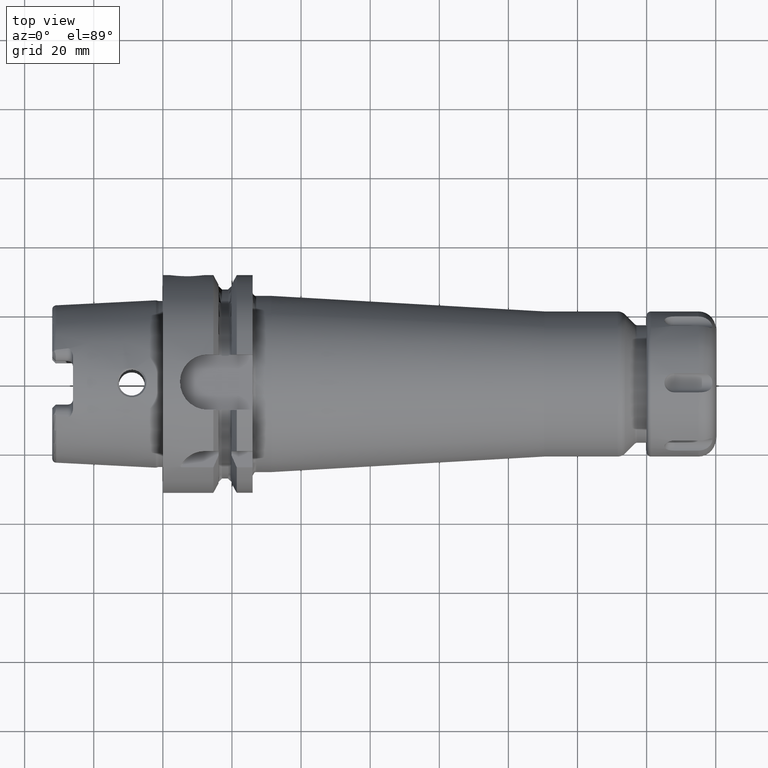
[diagram: clean part render]
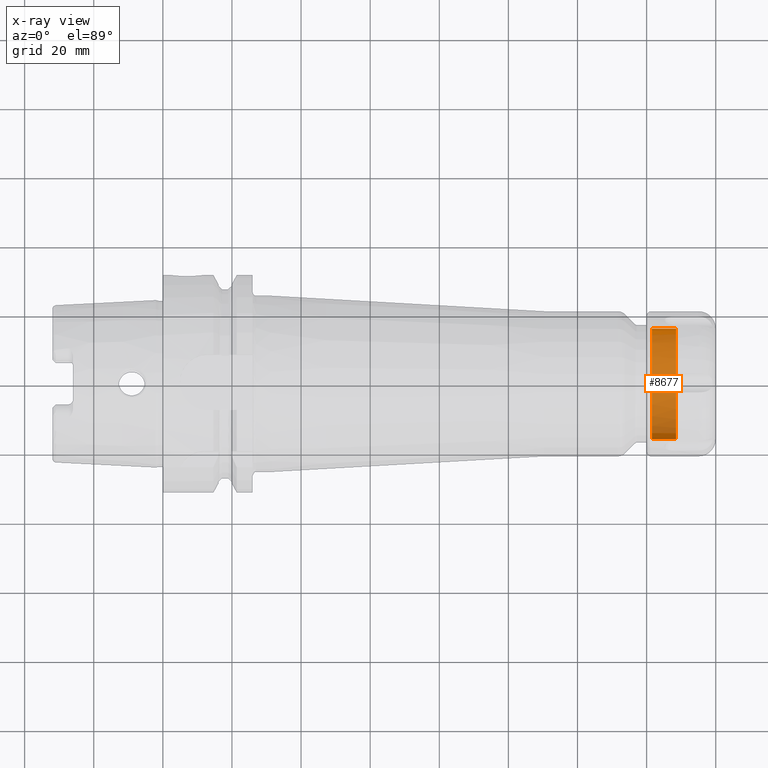
[diagram: x-ray — body ghosted, one internal face saturated and labeled with its STEP entity id]
A machine part, top view, then the same camera in x-ray: the body is ghosted and one INTERNAL B-rep face — a face not visible from any outside direction — is saturated and labeled: STEP entity #8677.
In plain terms, the highlighted cylindrical surface (partial cylindrical patch) has radius 16 mm, axis along (1, 0, 0).
Its self-contained STEP definition (entity closure, byte-faithful):
#7478=CARTESIAN_POINT('',(8.5E0,0.E0,0.E0));
#7479=DIRECTION('',(1.E0,0.E0,0.E0));
#7480=DIRECTION('',(0.E0,-1.E0,0.E0));
#7481=AXIS2_PLACEMENT_3D('',#7478,#7479,#7480);
#7487=CARTESIAN_POINT('',(8.5E0,0.E0,0.E0));
#7488=DIRECTION('',(1.E0,0.E0,0.E0));
#7489=DIRECTION('',(0.E0,0.E0,-1.E0));
#7490=AXIS2_PLACEMENT_3D('',#7487,#7488,#7489);
#7506=CARTESIAN_POINT('',(1.5E0,0.E0,0.E0));
#7507=DIRECTION('',(1.E0,0.E0,0.E0));
#7508=DIRECTION('',(0.E0,-1.E0,0.E0));
#7509=AXIS2_PLACEMENT_3D('',#7506,#7507,#7508);
#7511=DIRECTION('',(1.E0,0.E0,0.E0));
#7512=VECTOR('',#7511,7.E0);
#7513=CARTESIAN_POINT('',(1.5E0,-1.6E1,0.E0));
#7514=LINE('',#7513,#7512);
#7558=DIRECTION('',(1.E0,0.E0,0.E0));
#7559=VECTOR('',#7558,7.E0);
#7560=CARTESIAN_POINT('',(1.5E0,1.6E1,0.E0));
#7561=LINE('',#7560,#7559);
#7811=CARTESIAN_POINT('',(8.5E0,0.E0,-1.6E1));
#7812=VERTEX_POINT('',#7811);
#7815=CARTESIAN_POINT('',(8.5E0,1.6E1,0.E0));
#7816=VERTEX_POINT('',#7815);
#7817=CARTESIAN_POINT('',(8.5E0,-1.6E1,0.E0));
#7818=VERTEX_POINT('',#7817);
#7883=CARTESIAN_POINT('',(1.5E0,1.6E1,0.E0));
#7884=CARTESIAN_POINT('',(1.5E0,-1.6E1,0.E0));
#7885=VERTEX_POINT('',#7883);
#7886=VERTEX_POINT('',#7884);
#8662=CARTESIAN_POINT('',(0.E0,0.E0,0.E0));
#8663=DIRECTION('',(1.E0,0.E0,0.E0));
#8664=DIRECTION('',(0.E0,1.E0,0.E0));
#8665=AXIS2_PLACEMENT_3D('',#8662,#8663,#8664);
#8666=CYLINDRICAL_SURFACE('',#8665,1.6E1);
#8668=ORIENTED_EDGE('',*,*,#8667,.T.);
#8670=ORIENTED_EDGE('',*,*,#8669,.T.);
#8671=ORIENTED_EDGE('',*,*,#8653,.F.);
#8672=ORIENTED_EDGE('',*,*,#8642,.F.);
#8674=ORIENTED_EDGE('',*,*,#8673,.F.);
#8675=EDGE_LOOP('',(#8668,#8670,#8671,#8672,#8674));
#8676=FACE_OUTER_BOUND('',#8675,.F.);
#8677=ADVANCED_FACE('',(#8676),#8666,.F.);
#7482=CIRCLE('',#7481,1.6E1);
#7491=CIRCLE('',#7490,1.6E1);
#7510=CIRCLE('',#7509,1.6E1);
#8642=EDGE_CURVE('',#7818,#7812,#7482,.T.);
#8653=EDGE_CURVE('',#7812,#7816,#7491,.T.);
#8667=EDGE_CURVE('',#7886,#7885,#7510,.T.);
#8669=EDGE_CURVE('',#7885,#7816,#7561,.T.);
#8673=EDGE_CURVE('',#7886,#7818,#7514,.T.);